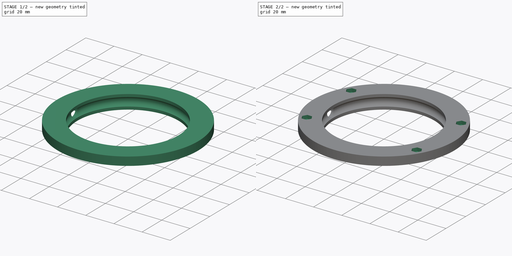
[diagram: build sequence overview — one tinted view per stage of 2, left to right]
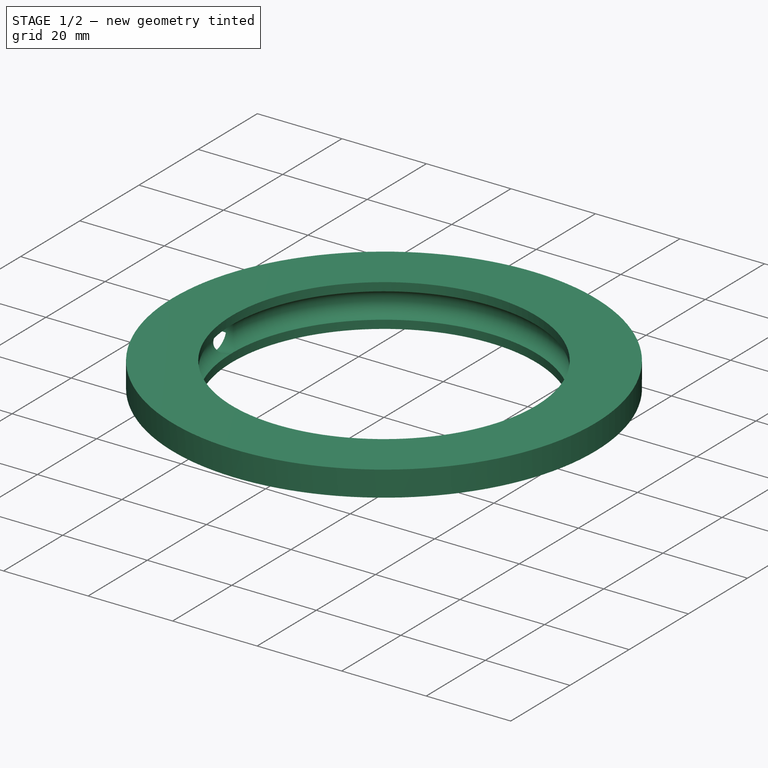
[diagram: stage 1 of 2 — iso view after this stage's code; geometry added in this stage tinted green]
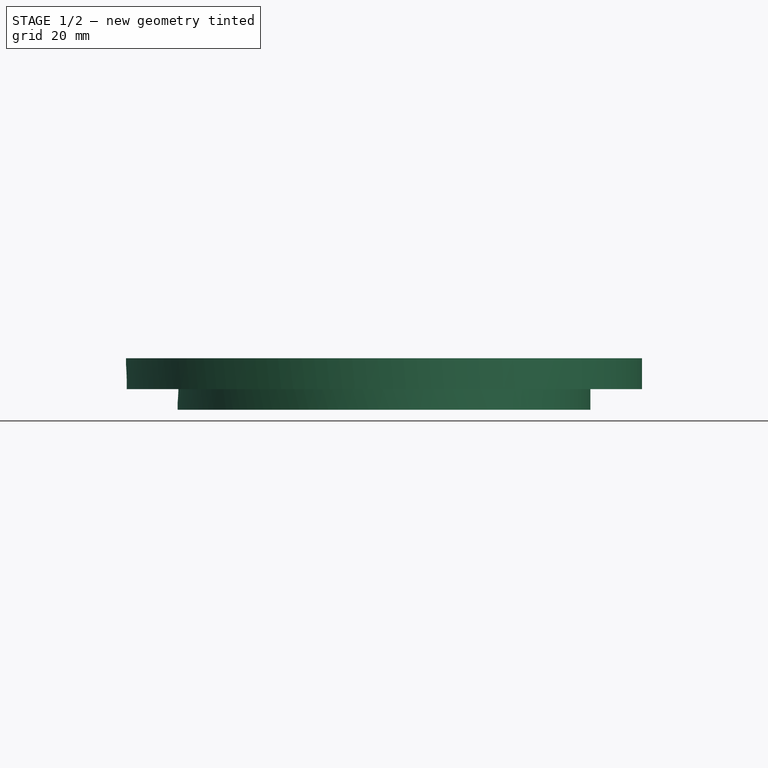
[diagram: stage 1 of 2 — front view after this stage's code; geometry added in this stage tinted green]
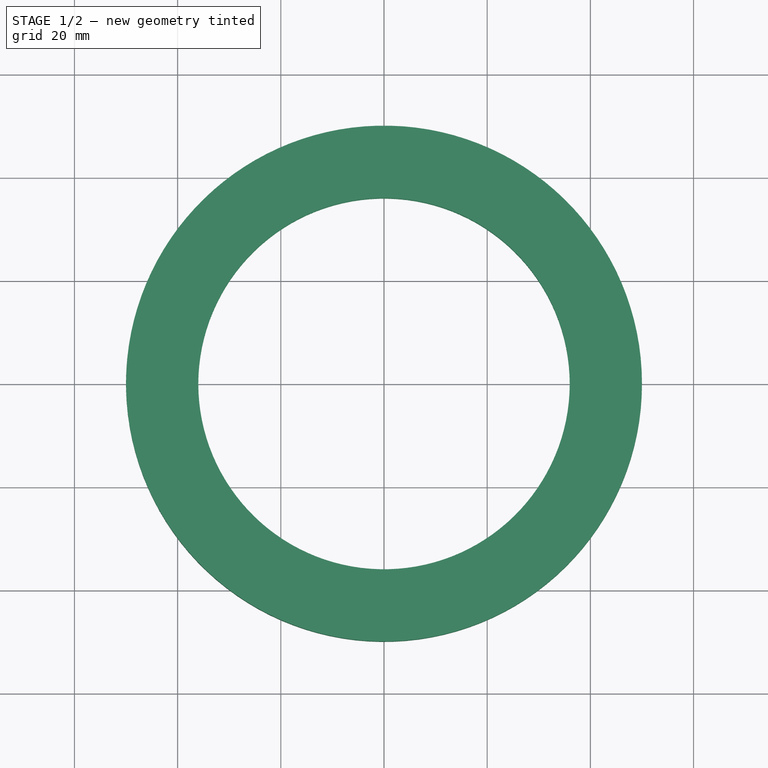
[diagram: stage 1 of 2 — top view after this stage's code; geometry added in this stage tinted green]
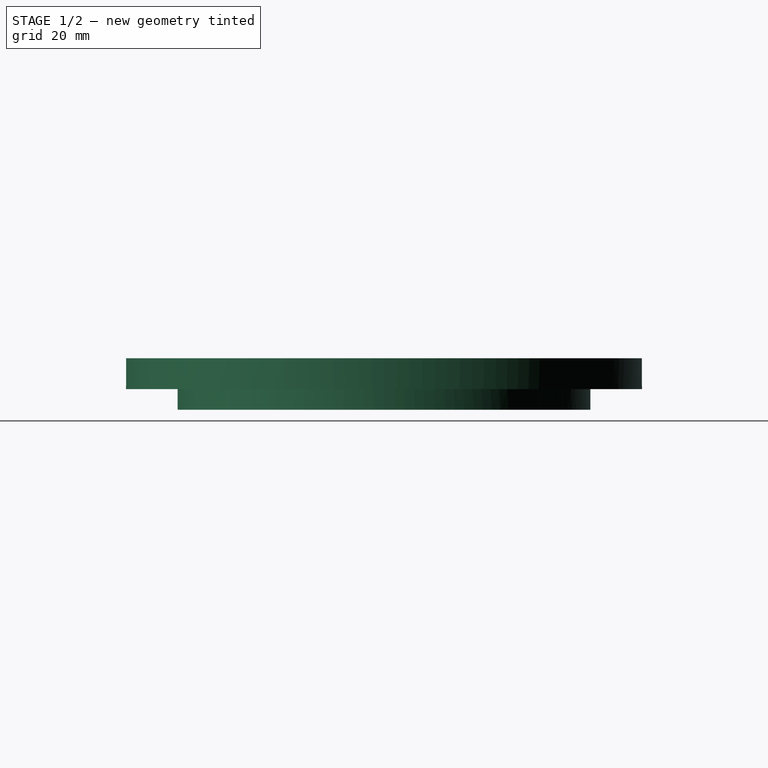
[diagram: stage 1 of 2 — right view after this stage's code; geometry added in this stage tinted green]
FCSTD DOCUMENT  (FreeCAD 0.19R24276 (Git))
Label: Art4BearingRing
License: All rights reserved
LicenseURL: http://en.wikipedia.org/wiki/All_rights_reserved
objects: Sketcher::SketchObject×4, PartDesign::Line×4, PartDesign::CoordinateSystem×3, PartDesign::Pocket×2, Spreadsheet::Sheet×1, PartDesign::Revolution×1, PartDesign::Plane×1, PartDesign::Groove×1, PartDesign::Body×1
note: 21 computed .brp shape members not serialized (recipe doc carries the construction recipe); baked Part::Feature solids carry a one-line shape summary decoded from their .brp

FEATURE [Sketcher::SketchObject] Sketch
  FullyConstrained = true
  MapMode = 5
  Placement = pos=(0,0,0) rot=(1,0,0;1.5708rad)
  Support = -> [XZ_Plane]
  expr: Constraints[16] = Spreadsheet.Ball6mmRadius
  sketch-geometry (8):
    g0: ArcOfCircle CenterX=35 CenterY=5 CenterZ=0 NormalX=0 NormalY=0 NormalZ=1 AngleXU=0 Radius=3.2 StartAngle=5.03021 EndAngle=7.53616
    g1: LineSegment StartX=36 StartY=8.03974 StartZ=0 EndX=36 EndY=10 EndZ=0
    g2: LineSegment StartX=36 StartY=10 StartZ=0 EndX=50 EndY=10 EndZ=0
    g3: LineSegment StartX=50 StartY=10 StartZ=0 EndX=50 EndY=4 EndZ=0
    g4: LineSegment StartX=50 StartY=4 StartZ=0 EndX=40 EndY=4 EndZ=0
    g5: LineSegment StartX=40 StartY=4 StartZ=0 EndX=40 EndY=0 EndZ=0
    g6: LineSegment StartX=40 StartY=0 StartZ=0 EndX=36 EndY=0 EndZ=0
    g7: LineSegment StartX=36 StartY=0 StartZ=0 EndX=36 EndY=1.96026 EndZ=0
  constraints (25):
    c: Vertical(g1)
    c: Coincident(g1,g2)
    c: Horizontal(g2)
    c: Coincident(g2,g3)
    c: Coincident(g3,g4)
    c: Horizontal(g4)
    c: Coincident(g4,g5)
    c: Vertical(g5)
    c: Coincident(g5,g6)
    c: PointOnObject(g6,g-1)
    c: Horizontal(g6)
    c: Coincident(g6,g7)
    c: Coincident(g7,g0)
    c: Coincident(g0,g1)
    c: Vertical(g7)
    c: PointOnObject(g0,g1)
    c: Radius(g0) = 3.2
    c: DistanceY(g5,g5) = 4
    c: Vertical(g3)
    c: DistanceY(g3,g3) = 6
    c: DistanceY(g0,g1) = 5
    c: DistanceX(g-1,g3) = 50
    c: DistanceX(g-1,g5) = 40
    c: DistanceX(g-1,g6) = 36
    c: DistanceX(g0,g0) = 1
FEATURE [Spreadsheet::Sheet] Spreadsheet
  cells = A2=M3BoltBodyRadius; B2(M3BoltBodyRadius)=1.7; A3=M3BoltHeadRadius; B3(M3BoltHeadRadius)=2.95; A4=M3NutCircumradius; B4(M3NutCircumradius)=3.35; A5=M3NutThickness; B5(M3NutThickness)=3; A6=Bearing655ZZBodyRadius; B6(Bearing655ZZBodyRadius)=8.199999999999999; A7=Ball6mmRadius; B7(Ball6mmRadius)=3.2
FEATURE [PartDesign::Revolution] Revolution
  Angle = 360
  Axis = (0,-2e-16,1)
  Base = (0,0,0)
  Placement = pos=(0,0,0) rot=(1,0,0;1.5708rad)
  Profile = -> Sketch
  ReferenceAxis = -> Sketch [V_Axis]
  Refine = true
  Reversed = true
FEATURE [PartDesign::Plane] DatumPlane
  AttachmentOffset = pos=(0,0,5) rot=(0,0,1;0rad)
  Length = 119.99
  MapMode = 5
  Placement = pos=(0,0,5) rot=(0,0,1;0rad)
  ResizeMode = 0
  Support = -> [XY_Plane]
  Width = 119.888
FEATURE [Sketcher::SketchObject] Sketch001
  FullyConstrained = true
  MapMode = 5
  Placement = pos=(0,0,5) rot=(0,0,1;0rad)
  Support = -> [DatumPlane]
  sketch-geometry (5):
    g0: LineSegment StartX=-35.5 StartY=0 StartZ=0 EndX=-35.5 EndY=3 EndZ=0
    g1: LineSegment StartX=-35.5 StartY=3 StartZ=0 EndX=-40.5 EndY=3.7 EndZ=0
    g2: LineSegment StartX=-40.5 StartY=3.7 StartZ=0 EndX=-51.5 EndY=3.7 EndZ=0
    g3: LineSegment StartX=-51.5 StartY=3.7 StartZ=0 EndX=-51.5 EndY=0 EndZ=0
    g4: LineSegment StartX=-51.5 StartY=0 StartZ=0 EndX=-35.5 EndY=0 EndZ=0
  constraints (15):
    c: PointOnObject(g0,g-1)
    c: Vertical(g0)
    c: Coincident(g0,g1)
    c: Coincident(g1,g2)
    c: Horizontal(g2)
    c: Coincident(g2,g3)
    c: PointOnObject(g3,g-1)
    c: Vertical(g3)
    c: Coincident(g3,g4)
    c: Coincident(g4,g0)
    c: DistanceY(g0,g0) = 3
    c: DistanceX(g1,g1) = 5
    c: DistanceY(g3,g3) = 3.7
    c: DistanceX(g2,g2) = 11
    c: DistanceX(g0,g-1) = 35.5
FEATURE [PartDesign::Groove] Groove
  Angle = 360
  Axis = (1,0,0)
  Base = (0,0,5)
  BaseFeature = -> Revolution
  Placement = pos=(0,0,0) rot=(1,0,0;1.5708rad)
  Profile = -> Sketch001
  ReferenceAxis = -> Sketch001 [H_Axis]
  Refine = true
  Reversed = true
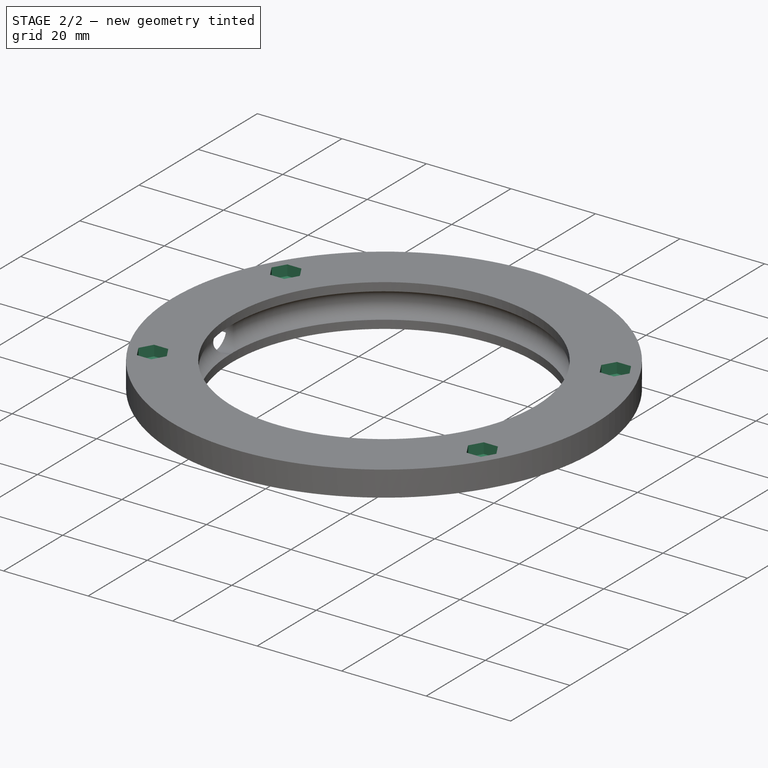
[diagram: stage 2 of 2 — iso view after this stage's code; geometry added in this stage tinted green]
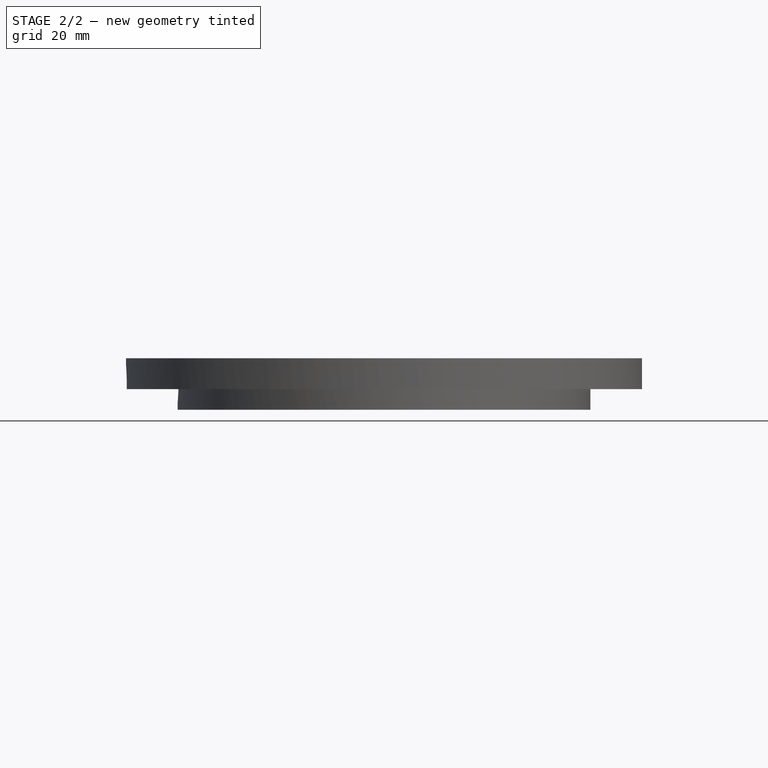
[diagram: stage 2 of 2 — front view after this stage's code; geometry added in this stage tinted green]
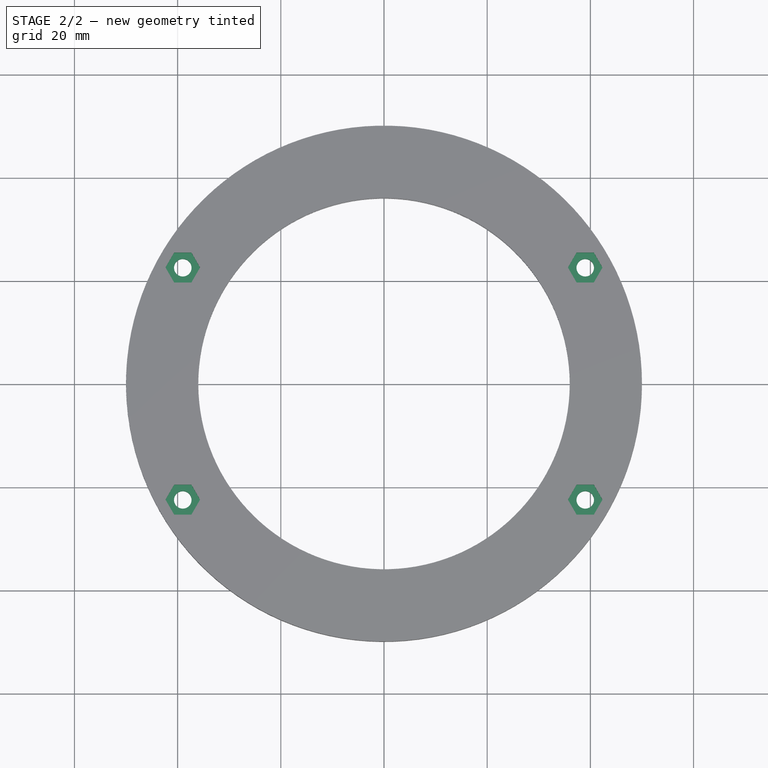
[diagram: stage 2 of 2 — top view after this stage's code; geometry added in this stage tinted green]
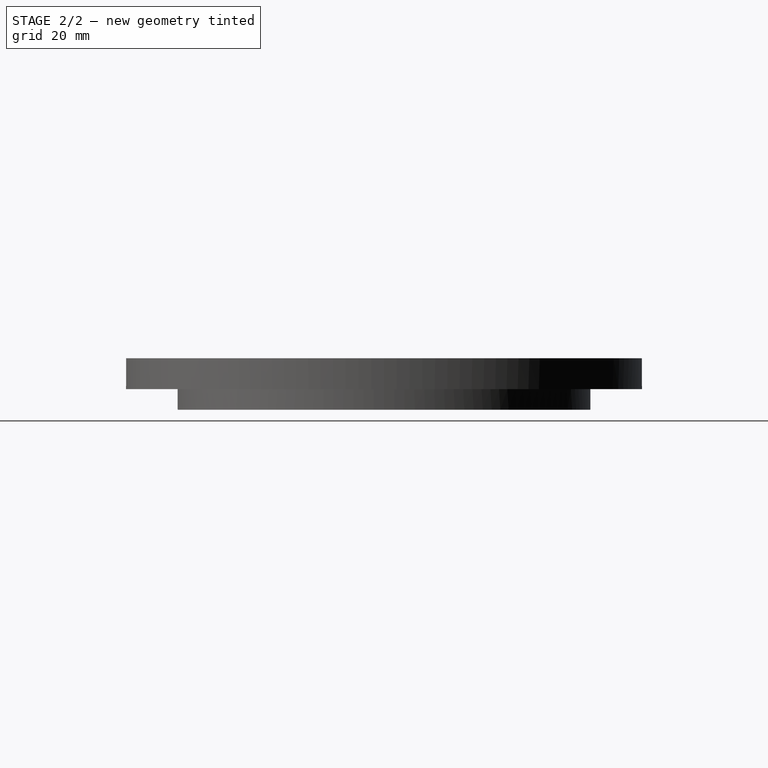
[diagram: stage 2 of 2 — right view after this stage's code; geometry added in this stage tinted green]
FEATURE [Sketcher::SketchObject] Sketch002
  FullyConstrained = true
  MapMode = 5
  Placement = pos=(0,2.2e-15,10) rot=(0,0,1;3.14159rad)
  Support = -> [Groove]
  expr: Constraints[3] = Spreadsheet.M3BoltBodyRadius
  sketch-geometry (4):
    g0: Circle CenterX=39 CenterY=-22.5 CenterZ=0 NormalX=0 NormalY=0 NormalZ=1 AngleXU=0 Radius=1.7
    g1: Circle CenterX=39 CenterY=22.5 CenterZ=0 NormalX=0 NormalY=0 NormalZ=1 AngleXU=0 Radius=1.7
    g2: Circle CenterX=-39 CenterY=22.5 CenterZ=0 NormalX=0 NormalY=0 NormalZ=1 AngleXU=0 Radius=1.7
    g3: Circle CenterX=-39 CenterY=-22.5 CenterZ=0 NormalX=0 NormalY=0 NormalZ=1 AngleXU=0 Radius=1.7
  constraints (9):
    c: Equal(g3,g2)
    c: Equal(g2,g1)
    c: Equal(g1,g0)
    c: Radius(g0) = 1.7
    c: DistanceY(g0,g1) = 45
    c: Symmetric(g0,g1,g-1)
    c: Symmetric(g2,g1,g-2)
    c: Symmetric(g2,g3,g-1)
    c: DistanceX(g2,g1) = 78
FEATURE [PartDesign::Pocket] Pocket
  BaseFeature = -> Groove
  Length = 5
  Length2 = 100
  Placement = pos=(0,0,0) rot=(1,0,0;1.5708rad)
  Profile = -> Sketch002
  Refine = true
  Type = 1
FEATURE [Sketcher::SketchObject] Sketch003
  ExternalGeometry = -> [Pocket]
  FullyConstrained = true
  MapMode = 5
  Placement = pos=(0,2.2e-15,10) rot=(0,0,1;3.14159rad)
  Support = -> [Pocket]
  expr: Constraints[79] = Spreadsheet.M3NutCircumradius
  sketch-geometry (28):
    g0: LineSegment StartX=37.325 StartY=25.4012 StartZ=0 EndX=35.65 EndY=22.5 EndZ=0
    g1: LineSegment StartX=35.65 StartY=22.5 StartZ=0 EndX=37.325 EndY=19.5988 EndZ=0
    g2: LineSegment StartX=37.325 StartY=19.5988 StartZ=0 EndX=40.675 EndY=19.5988 EndZ=0
    g3: LineSegment StartX=40.675 StartY=19.5988 StartZ=0 EndX=42.35 EndY=22.5 EndZ=0
    g4: LineSegment StartX=42.35 StartY=22.5 StartZ=0 EndX=40.675 EndY=25.4012 EndZ=0
    g5: LineSegment StartX=40.675 StartY=25.4012 StartZ=0 EndX=37.325 EndY=25.4012 EndZ=0
    g6: Circle CenterX=39 CenterY=22.5 CenterZ=0 NormalX=0 NormalY=0 NormalZ=1 AngleXU=0 Radius=3.35
    g7: LineSegment StartX=-37.325 StartY=25.4012 StartZ=0 EndX=-40.675 EndY=25.4012 EndZ=0
    g8: LineSegment StartX=-40.675 StartY=25.4012 StartZ=0 EndX=-42.35 EndY=22.5 EndZ=0
    g9: LineSegment StartX=-42.35 StartY=22.5 StartZ=0 EndX=-40.675 EndY=19.5988 EndZ=0
    g10: LineSegment StartX=-40.675 StartY=19.5988 StartZ=0 EndX=-37.325 EndY=19.5988 EndZ=0
    g11: LineSegment StartX=-37.325 StartY=19.5988 StartZ=0 EndX=-35.65 EndY=22.5 EndZ=0
    g12: LineSegment StartX=-35.65 StartY=22.5 StartZ=0 EndX=-37.325 EndY=25.4012 EndZ=0
    g13: Circle CenterX=-39 CenterY=22.5 CenterZ=0 NormalX=0 NormalY=0 NormalZ=1 AngleXU=0 Radius=3.35
    g14: LineSegment StartX=-37.325 StartY=-19.5988 StartZ=0 EndX=-40.675 EndY=-19.5988 EndZ=0
    g15: LineSegment StartX=-40.675 StartY=-19.5988 StartZ=0 EndX=-42.35 EndY=-22.5 EndZ=0
    g16: LineSegment StartX=-42.35 StartY=-22.5 StartZ=0 EndX=-40.675 EndY=-25.4012 EndZ=0
    g17: LineSegment StartX=-40.675 StartY=-25.4012 StartZ=0 EndX=-37.325 EndY=-25.4012 EndZ=0
    g18: LineSegment StartX=-37.325 StartY=-25.4012 StartZ=0 EndX=-35.65 EndY=-22.5 EndZ=0
    g19: LineSegment StartX=-35.65 StartY=-22.5 StartZ=0 EndX=-37.325 EndY=-19.5988 EndZ=0
    g20: Circle CenterX=-39 CenterY=-22.5 CenterZ=0 NormalX=0 NormalY=0 NormalZ=1 AngleXU=0 Radius=3.35
    g21: LineSegment StartX=40.675 StartY=-19.5988 StartZ=0 EndX=37.325 EndY=-19.5988 EndZ=0
    g22: LineSegment StartX=37.325 StartY=-19.5988 StartZ=0 EndX=35.65 EndY=-22.5 EndZ=0
    g23: LineSegment StartX=35.65 StartY=-22.5 StartZ=0 EndX=37.325 EndY=-25.4012 EndZ=0
    g24: LineSegment StartX=37.325 StartY=-25.4012 StartZ=0 EndX=40.675 EndY=-25.4012 EndZ=0
    g25: LineSegment StartX=40.675 StartY=-25.4012 StartZ=0 EndX=42.35 EndY=-22.5 EndZ=0
    g26: LineSegment StartX=42.35 StartY=-22.5 StartZ=0 EndX=40.675 EndY=-19.5988 EndZ=0
    g27: Circle CenterX=39 CenterY=-22.5 CenterZ=0 NormalX=0 NormalY=0 NormalZ=1 AngleXU=0 Radius=3.35
  constraints (64):
    c: Coincident(g0,g1)
    c: Coincident(g1,g2)
    c: Coincident(g2,g3)
    c: Coincident(g3,g4)
    c: Coincident(g4,g5)
    c: Coincident(g5,g0)
    c: Equal(g0, g1-g5) x5
    c: PointOnObject(g0,g6)
    c: PointOnObject(g1,g6)
    c: PointOnObject(g2,g6)
    c: PointOnObject(g3,g6)
    c: PointOnObject(g4,g6)
    c: PointOnObject(g5,g6)
    c: Coincident(g6,g-3)
    c: Coincident(g7,g8)
    c: Coincident(g8,g9)
    c: Coincident(g9,g10)
    c: Coincident(g10,g11)
    c: Coincident(g11,g12)
    c: Coincident(g12,g7)
    c: Equal(g7, g8-g12) x5
    c: PointOnObject(g7,g13)
    c: PointOnObject(g8,g13)
    c: PointOnObject(g9,g13)
    c: PointOnObject(g10,g13)
    c: PointOnObject(g11,g13)
    c: PointOnObject(g12,g13)
    c: Coincident(g13,g-6)
    c: Coincident(g14,g15)
    c: Coincident(g15,g16)
    c: Coincident(g16,g17)
    c: Coincident(g17,g18)
    c: Coincident(g18,g19)
    c: Coincident(g19,g14)
    c: Equal(g14, g15-g19) x5
    c: PointOnObject(g14,g20)
    c: PointOnObject(g15,g20)
    c: PointOnObject(g16,g20)
    c: PointOnObject(g17,g20)
    c: PointOnObject(g18,g20)
    c: PointOnObject(g19,g20)
    c: Coincident(g20,g-5)
    c: Coincident(g21,g22)
    c: Coincident(g22,g23)
    c: Coincident(g23,g24)
    c: Coincident(g24,g25)
    c: Coincident(g25,g26)
    c: Coincident(g26,g21)
    c: Equal(g21, g22-g26) x5
    c: PointOnObject(g21,g27)
    c: PointOnObject(g22,g27)
    c: PointOnObject(g23,g27)
    c: PointOnObject(g24,g27)
    c: PointOnObject(g25,g27)
    c: PointOnObject(g26,g27)
    c: Coincident(g27,g-4)
    c: Equal(g6,g27)
    c: Equal(g27,g13)
    c: Equal(g13,g20)
    c: Horizontal(g14)
    c: Horizontal(g21)
    c: Horizontal(g5)
    c: Horizontal(g7)
    c: Radius(g20) = 3.35
FEATURE [PartDesign::Pocket] Pocket001
  BaseFeature = -> Pocket
  Length = 2.5
  Length2 = 100
  Placement = pos=(0,0,0) rot=(1,0,0;1.5708rad)
  Profile = -> Sketch003
  Refine = true
  Type = 0
FEATURE [PartDesign::CoordinateSystem] LCS_Art4BearingRing
  AttacherType = Attacher::AttachEngine3D
  Support = -> [Pocket001]
FEATURE [PartDesign::CoordinateSystem] LCS_Plug
  AttacherType = Attacher::AttachEngine3D
  Placement = pos=(-43.95,0,4) rot=(0,0,1;0rad)
FEATURE [PartDesign::CoordinateSystem] LCS_BallBearings
  AttacherType = Attacher::AttachEngine3D
  Placement = pos=(0,0,4) rot=(0,0,1;0rad)
FEATURE [PartDesign::Line] HoleAxis_1
  AttacherType = Attacher::AttachEngineLine
  Length = 4.79083
  MapMode = 19
  Placement = pos=(39,22.5,7.5) rot=(0,0,1;3.14159rad)
  ResizeMode = 1
  Support = -> [Pocket001]
FEATURE [PartDesign::Line] HoleAxis_2
  AttacherType = Attacher::AttachEngineLine
  Length = 4.79083
  MapMode = 19
  Placement = pos=(-39,22.5,7.5) rot=(0,0,1;3.14159rad)
  ResizeMode = 1
  Support = -> [Pocket001]
FEATURE [PartDesign::Line] HoleAxis_3
  AttacherType = Attacher::AttachEngineLine
  Length = 4.79083
  MapMode = 19
  Placement = pos=(-39,-22.5,7.5) rot=(0,0,1;3.14159rad)
  ResizeMode = 1
  Support = -> [Pocket001]
FEATURE [PartDesign::Line] HoleAxis_4
  AttacherType = Attacher::AttachEngineLine
  Length = 4.79083
  MapMode = 19
  Placement = pos=(39,-22.5,7.5) rot=(0,0,1;3.14159rad)
  ResizeMode = 1
  Support = -> [Pocket001]
FEATURE [PartDesign::Body] Body  label="Art4BearingRing"
  Group = -> [Sketch,Revolution,DatumPlane,Sketch001,Groove,Sketch002,Pocket,Sketch003,Pocket001,LCS_Art4BearingRing,LCS_Plug,LCS_BallBearings,HoleAxis_1,HoleAxis_2,HoleAxis_3,HoleAxis_4]
  Origin = -> Origin
  Tip = -> Pocket001
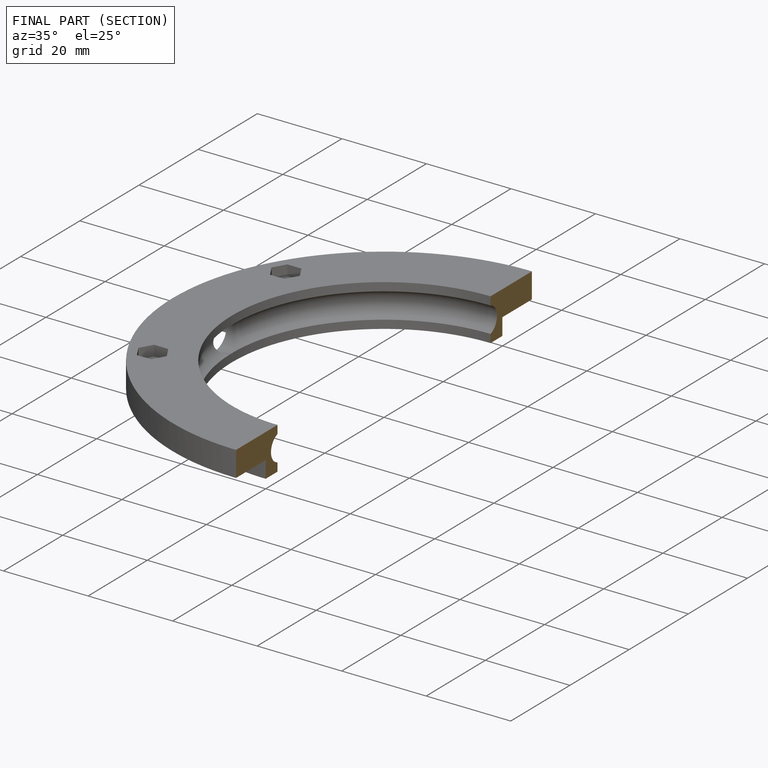
[diagram: finished part — half-section view (interior)]
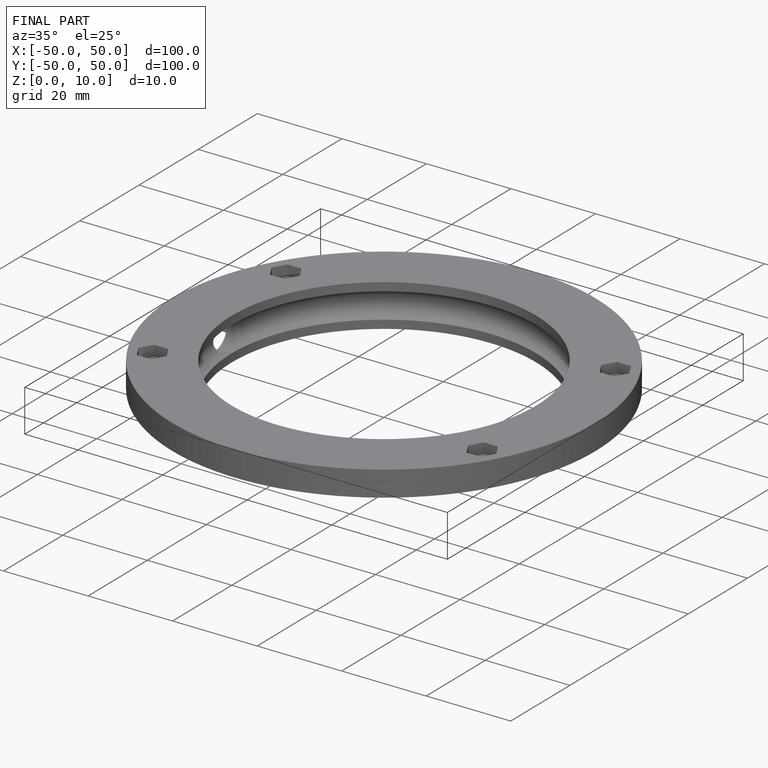
[diagram: finished part — iso view with bounding-box wireframe]
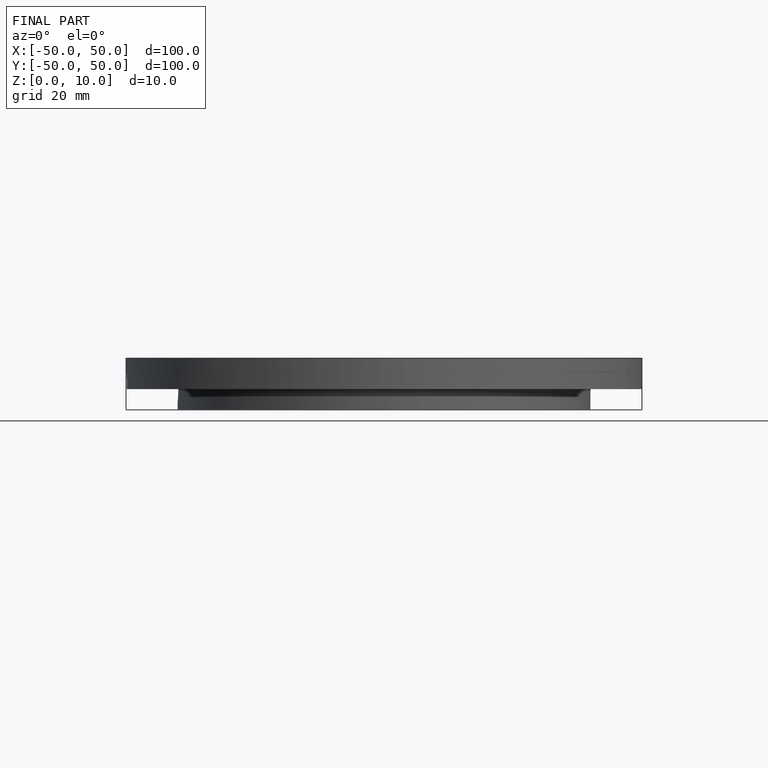
[diagram: finished part — front view with bounding-box wireframe]
